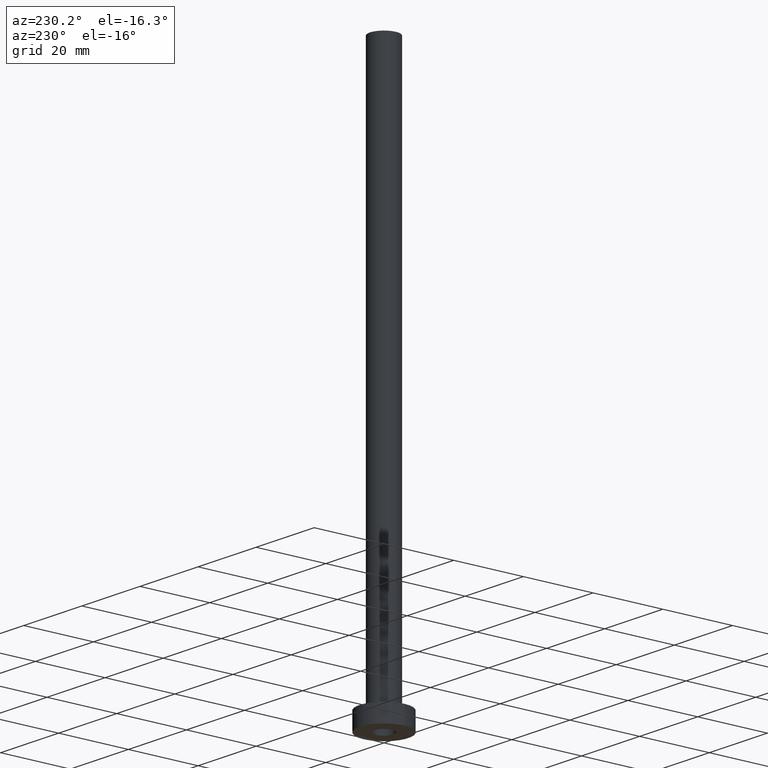
[diagram: clean part render]
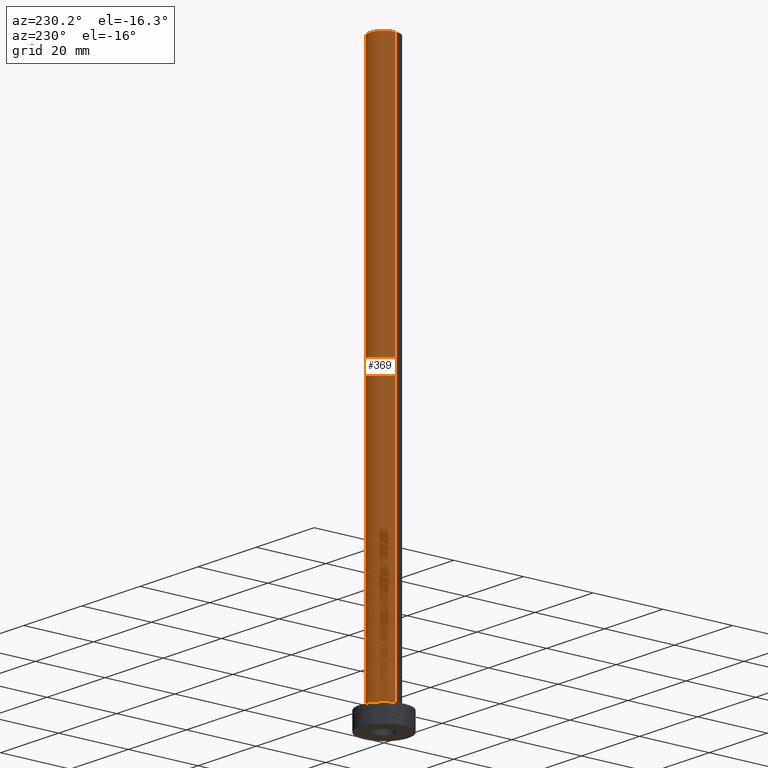
[diagram: same view with one face highlighted and labeled with its STEP entity id]
A machine part, auxiliary view. The second image highlights one B-rep face of the part: STEP entity #369.
In plain terms, the highlighted cylindrical surface (edge-blend (fillet) strip) has radius 4 mm, axis along (-0, -0, -1).
Its self-contained STEP definition (entity closure, byte-faithful):
#4 = LINE ( 'NONE', #186, #271 ) ;
#7 = AXIS2_PLACEMENT_3D ( 'NONE', #210, #388, #62 ) ;
#20 = EDGE_CURVE ( 'NONE', #95, #191, #4, .T. ) ;
#51 = EDGE_CURVE ( 'NONE', #311, #95, #167, .T. ) ;
#52 = CYLINDRICAL_SURFACE ( 'NONE', #422, 4.000000000000000000 ) ;
#62 = DIRECTION ( 'NONE',  ( 1.000000000000000000, 0.000000000000000000, 0.000000000000000000 ) ) ;
#66 = ORIENTED_EDGE ( 'NONE', *, *, #245, .T. ) ;
#70 = CARTESIAN_POINT ( 'NONE',  ( -4.000000000000000000, 0.000000000000000000, 5.500000000000005329 ) ) ;
#71 = AXIS2_PLACEMENT_3D ( 'NONE', #77, #435, #224 ) ;
#77 = CARTESIAN_POINT ( 'NONE',  ( 0.000000000000000000, 0.000000000000000000, 160.0000000000000000 ) ) ;
#80 = CARTESIAN_POINT ( 'NONE',  ( -4.000000000000000000, 0.000000000000000000, 160.0000000000000000 ) ) ;
#84 = CARTESIAN_POINT ( 'NONE',  ( 0.000000000000000000, 0.000000000000000000, 160.0000000000000000 ) ) ;
#95 = VERTEX_POINT ( 'NONE', #80 ) ;
#106 = EDGE_LOOP ( 'NONE', ( #455, #66, #126, #424 ) ) ;
#122 = LINE ( 'NONE', #441, #192 ) ;
#125 = CARTESIAN_POINT ( 'NONE',  ( 4.000000000000000000, 4.898587196589412829E-16, 160.0000000000000000 ) ) ;
#126 = ORIENTED_EDGE ( 'NONE', *, *, #440, .T. ) ;
#167 = CIRCLE ( 'NONE', #71, 4.000000000000000000 ) ;
#186 = CARTESIAN_POINT ( 'NONE',  ( -4.000000000000000000, 0.000000000000000000, 160.0000000000000000 ) ) ;
#190 = CARTESIAN_POINT ( 'NONE',  ( 4.000000000000000000, 4.898587196589412829E-16, 5.500000000000005329 ) ) ;
#191 = VERTEX_POINT ( 'NONE', #70 ) ;
#192 = VECTOR ( 'NONE', #263, 1000.000000000000000 ) ;
#194 = DIRECTION ( 'NONE',  ( -0.000000000000000000, -0.000000000000000000, -1.000000000000000000 ) ) ;
#210 = CARTESIAN_POINT ( 'NONE',  ( 0.000000000000000000, 0.000000000000000000, 5.500000000000005329 ) ) ;
#224 = DIRECTION ( 'NONE',  ( 1.000000000000000000, 0.000000000000000000, 0.000000000000000000 ) ) ;
#245 = EDGE_CURVE ( 'NONE', #311, #337, #122, .T. ) ;
#263 = DIRECTION ( 'NONE',  ( -0.000000000000000000, -0.000000000000000000, -1.000000000000000000 ) ) ;
#266 = FACE_OUTER_BOUND ( 'NONE', #106, .T. ) ;
#271 = VECTOR ( 'NONE', #329, 1000.000000000000000 ) ;
#311 = VERTEX_POINT ( 'NONE', #125 ) ;
#329 = DIRECTION ( 'NONE',  ( -0.000000000000000000, -0.000000000000000000, -1.000000000000000000 ) ) ;
#337 = VERTEX_POINT ( 'NONE', #190 ) ;
#348 = DIRECTION ( 'NONE',  ( -1.000000000000000000, 0.000000000000000000, 0.000000000000000000 ) ) ;
#369 = ADVANCED_FACE ( 'NONE', ( #266 ), #52, .T. ) ;
#388 = DIRECTION ( 'NONE',  ( 0.000000000000000000, 0.000000000000000000, 1.000000000000000000 ) ) ;
#422 = AXIS2_PLACEMENT_3D ( 'NONE', #84, #194, #348 ) ;
#424 = ORIENTED_EDGE ( 'NONE', *, *, #20, .F. ) ;
#435 = DIRECTION ( 'NONE',  ( 0.000000000000000000, 0.000000000000000000, 1.000000000000000000 ) ) ;
#436 = CIRCLE ( 'NONE', #7, 4.000000000000000000 ) ;
#440 = EDGE_CURVE ( 'NONE', #337, #191, #436, .T. ) ;
#441 = CARTESIAN_POINT ( 'NONE',  ( 4.000000000000000000, 4.898587196589412829E-16, 160.0000000000000000 ) ) ;
#455 = ORIENTED_EDGE ( 'NONE', *, *, #51, .F. ) ;